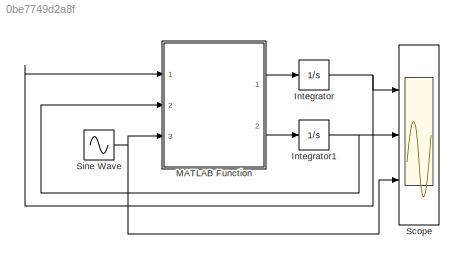
MODEL slx_0be7749d2a8f
KIND model
CONFIG AbsTol = auto
CONFIG EnableMultiTasking = off
CONFIG FixedStep = 0.002
CONFIG MaxStep = auto
CONFIG MinStep = auto
CONFIG RelTol = 1e-3
CONFIG SampleTimeConstraint = Unconstrained
CONFIG Solver = ode4
CONFIG SolverName = ode4
CONFIG StartTime = 0.0
CONFIG StopTime = 3
BLOCK [Integrator] Integrator
  InitialCondition = 0.2
  Ports = [1, 1]
BLOCK [Integrator] Integrator1
  InitialCondition = 0.4
  Ports = [1, 1]
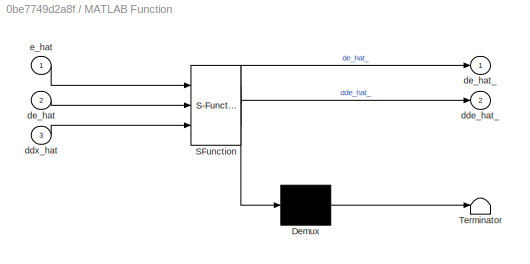
BLOCK [SubSystem] MATLAB Function
  ErrorFcn = Stateflow.Translate.translate
  PermitHierarchicalResolution = ExplicitOnly
  Ports = [3, 2]
  RequestExecContextInheritance = off
  SFBlockType = MATLAB Function
  TreatAsAtomicUnit = on
  Variant = off
BLOCK [Demux] MATLAB Function/ Demux 
  Outputs = 1
  Ports = [1, 1]
BLOCK [S-Function] MATLAB Function/ SFunction 
  EnableBusSupport = on
  FunctionName = sf_sfun
  PortCounts = [3 3]
  Ports = [3, 3]
  SFcnIsStateOwnerBlock = off
  SFunctionDeploymentMode = off
  Tag = Stateflow S-Function twoDimTest 2
BLOCK [Terminator] MATLAB Function/ Terminator 
BLOCK [Outport] MATLAB Function/dde_hat_
  IconDisplay = Port number
  Port = 2
BLOCK [Inport] MATLAB Function/ddx_hat
  IconDisplay = Port number
  Port = 3
BLOCK [Inport] MATLAB Function/de_hat
  IconDisplay = Port number
  Port = 2
BLOCK [Outport] MATLAB Function/de_hat_
  IconDisplay = Port number
BLOCK [Inport] MATLAB Function/e_hat
  IconDisplay = Port number
BLOCK [Scope] Scope
  NumInputPorts = 3
  Ports = [3]
  ScopeSpecificationString = Simulink.scopes.TimeScopeBlockCfg('CurrentConfiguration', extmgr.ConfigurationSet(extmgr.Configuration('Core','General UI',true),extmgr.Configuration('Core','Source UI',true),extmgr.Configuration('Sources','WiredSimulink',true),extmgr.Configuration('Visuals','Time Domain',true,'SerializedDisplays',{struct('MinYLimReal','0.07114','MaxYLimReal','0.25478','YLabelReal','','MinYLimMag','0.07114','MaxYL...<+2720ch>
BLOCK [Sin] Sine Wave
  Frequency = 0.001
  Phase = pi/2
  Ports = [0, 1]
  SampleTime = 0
NET Integrator1:1 -> MATLAB Function:2, Scope:2
NET Integrator:1 -> MATLAB Function:1, Scope:1
LINE MATLAB Function:1 -> Integrator:1
LINE MATLAB Function:2 -> Integrator1:1
NET Sine Wave:1 -> MATLAB Function:3, Scope:3
note: NET lines group one-source signal fan-out (src -> all destinations, sorted); 1:1 wires keep LINE
CHART MATLAB Function states=1 transitions=1
  STATE_LABEL 'eML_blk_kernel()'
  STATE_LABEL 'SCRIPT:\nfunction [de_hat_,dde_hat_] = fcn(e_hat,de_hat,ddx_hat)\n\nde_hat_ = de_hat;\ndde_hat_ = -10*e_hat -4*de_hat + ddx_hat;\n\nend\n'
